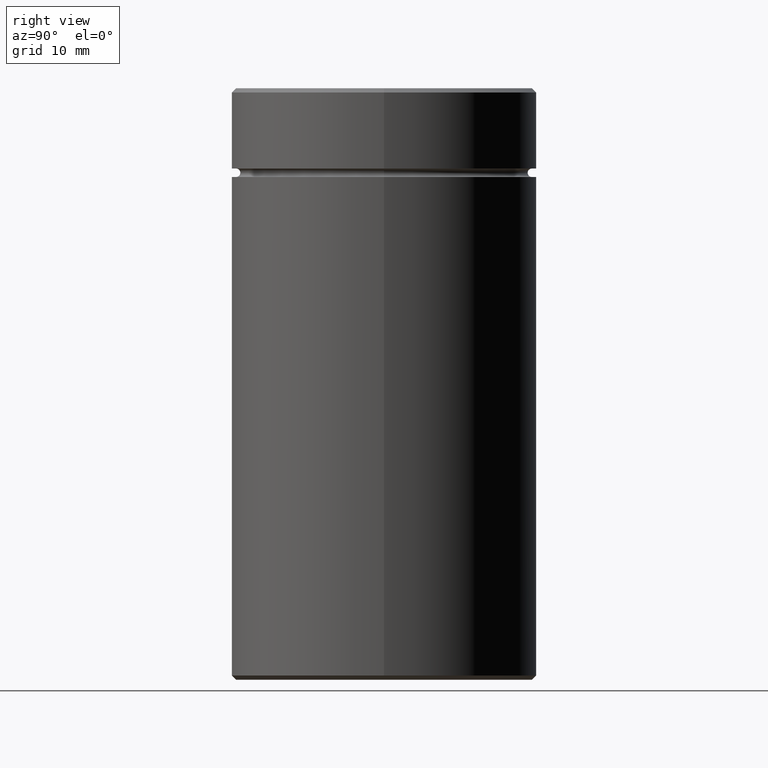
[diagram: clean part render]
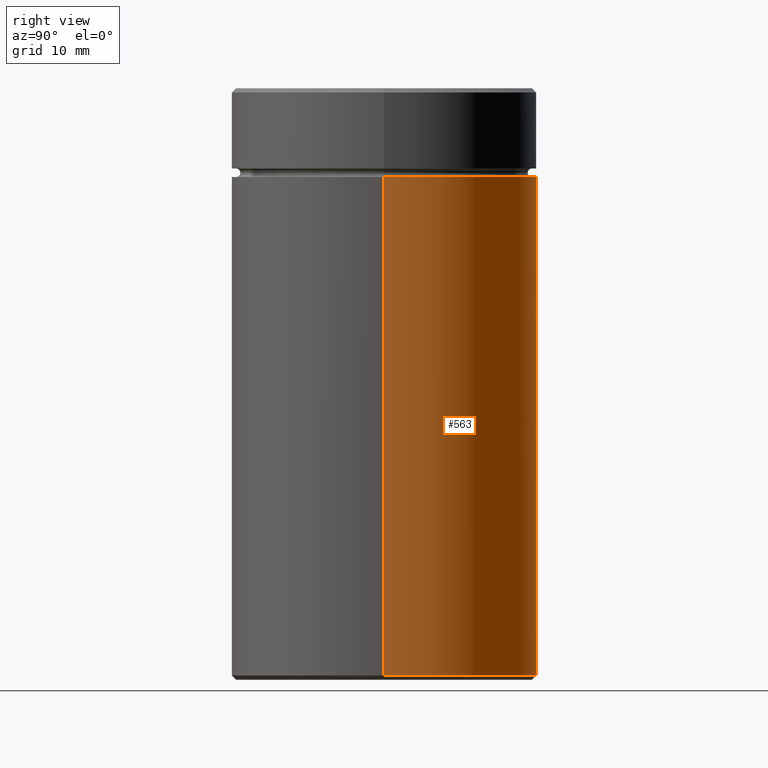
[diagram: same view with one face highlighted and labeled with its STEP entity id]
A machine part, right view. The second image highlights one B-rep face of the part: STEP entity #563.
In plain terms, the highlighted cylindrical surface (partial cylindrical patch) has radius 18 mm, axis along (-0, -0, 1).
Its self-contained STEP definition (entity closure, byte-faithful):
#6 = LINE ( 'NONE', #84, #490 ) ;
#17 = CARTESIAN_POINT ( 'NONE',  ( -18.00000000000000000, 2.204364238465235428E-15, -10.50000000000000000 ) ) ;
#18 = VERTEX_POINT ( 'NONE', #496 ) ;
#40 = DIRECTION ( 'NONE',  ( -0.000000000000000000, -0.000000000000000000, 1.000000000000000000 ) ) ;
#51 = VECTOR ( 'NONE', #285, 1000.000000000000000 ) ;
#68 = ORIENTED_EDGE ( 'NONE', *, *, #457, .F. ) ;
#84 = CARTESIAN_POINT ( 'NONE',  ( -18.00000000000000000, 2.204364238465235428E-15, 0.000000000000000000 ) ) ;
#106 = VERTEX_POINT ( 'NONE', #17 ) ;
#110 = CARTESIAN_POINT ( 'NONE',  ( 0.000000000000000000, 0.000000000000000000, -69.50000000000001421 ) ) ;
#115 = EDGE_CURVE ( 'NONE', #175, #18, #253, .T. ) ;
#172 = EDGE_CURVE ( 'NONE', #175, #183, #221, .T. ) ;
#175 = VERTEX_POINT ( 'NONE', #374 ) ;
#182 = CARTESIAN_POINT ( 'NONE',  ( 0.000000000000000000, 0.000000000000000000, 0.000000000000000000 ) ) ;
#183 = VERTEX_POINT ( 'NONE', #277 ) ;
#208 = DIRECTION ( 'NONE',  ( -0.000000000000000000, -0.000000000000000000, 1.000000000000000000 ) ) ;
#221 = CIRCLE ( 'NONE', #489, 18.00000000000000000 ) ;
#253 = LINE ( 'NONE', #413, #51 ) ;
#268 = FACE_OUTER_BOUND ( 'NONE', #344, .T. ) ;
#277 = CARTESIAN_POINT ( 'NONE',  ( -18.00000000000000000, 2.204364238465235428E-15, -69.50000000000001421 ) ) ;
#285 = DIRECTION ( 'NONE',  ( -0.000000000000000000, -0.000000000000000000, 1.000000000000000000 ) ) ;
#289 = CARTESIAN_POINT ( 'NONE',  ( 0.000000000000000000, 0.000000000000000000, -10.50000000000000000 ) ) ;
#309 = AXIS2_PLACEMENT_3D ( 'NONE', #289, #40, #470 ) ;
#344 = EDGE_LOOP ( 'NONE', ( #401, #551, #68, #365 ) ) ;
#354 = DIRECTION ( 'NONE',  ( -0.000000000000000000, -0.000000000000000000, 1.000000000000000000 ) ) ;
#365 = ORIENTED_EDGE ( 'NONE', *, *, #115, .F. ) ;
#374 = CARTESIAN_POINT ( 'NONE',  ( 18.00000000000000000, 0.000000000000000000, -69.50000000000001421 ) ) ;
#385 = EDGE_CURVE ( 'NONE', #183, #106, #6, .T. ) ;
#401 = ORIENTED_EDGE ( 'NONE', *, *, #172, .T. ) ;
#403 = CYLINDRICAL_SURFACE ( 'NONE', #504, 18.00000000000000000 ) ;
#410 = CIRCLE ( 'NONE', #309, 18.00000000000000000 ) ;
#411 = DIRECTION ( 'NONE',  ( -0.000000000000000000, -0.000000000000000000, 1.000000000000000000 ) ) ;
#413 = CARTESIAN_POINT ( 'NONE',  ( 18.00000000000000000, 0.000000000000000000, 0.000000000000000000 ) ) ;
#451 = DIRECTION ( 'NONE',  ( 1.000000000000000000, 0.000000000000000000, 0.000000000000000000 ) ) ;
#457 = EDGE_CURVE ( 'NONE', #18, #106, #410, .T. ) ;
#462 = DIRECTION ( 'NONE',  ( -1.000000000000000000, 0.000000000000000000, 0.000000000000000000 ) ) ;
#470 = DIRECTION ( 'NONE',  ( 1.000000000000000000, 0.000000000000000000, 0.000000000000000000 ) ) ;
#489 = AXIS2_PLACEMENT_3D ( 'NONE', #110, #411, #462 ) ;
#490 = VECTOR ( 'NONE', #208, 1000.000000000000000 ) ;
#496 = CARTESIAN_POINT ( 'NONE',  ( 18.00000000000000000, 0.000000000000000000, -10.50000000000000000 ) ) ;
#504 = AXIS2_PLACEMENT_3D ( 'NONE', #182, #354, #451 ) ;
#551 = ORIENTED_EDGE ( 'NONE', *, *, #385, .T. ) ;
#563 = ADVANCED_FACE ( 'NONE', ( #268 ), #403, .T. ) ;